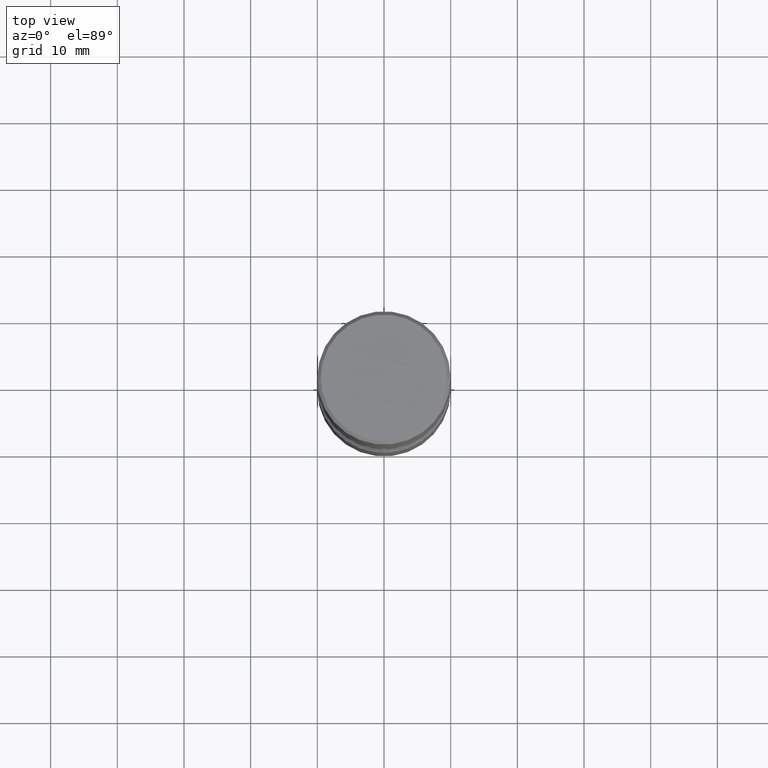
[diagram: clean part render]
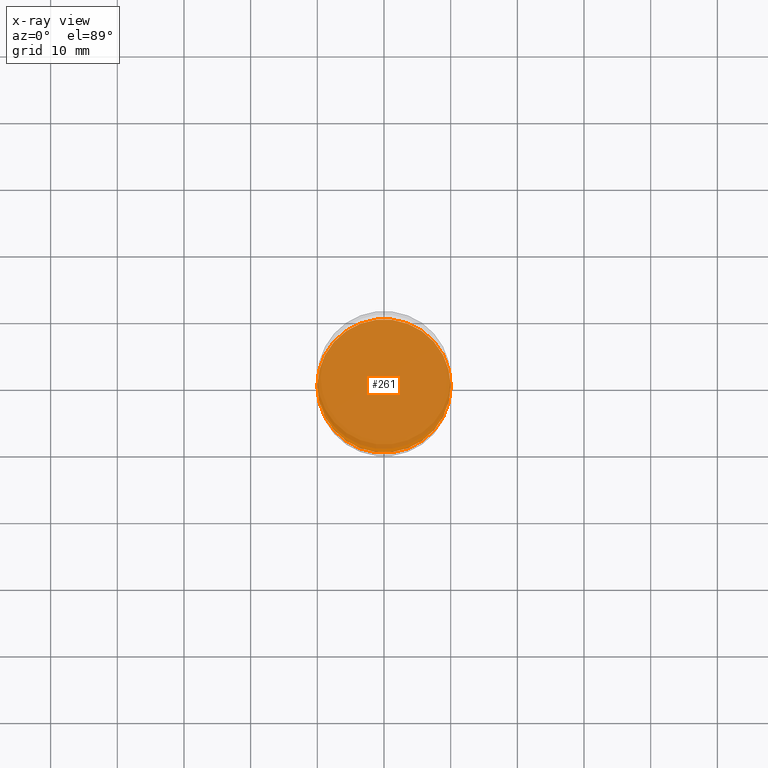
[diagram: x-ray — body ghosted, one internal face saturated and labeled with its STEP entity id]
A machine part, top view, then the same camera in x-ray: the body is ghosted and one INTERNAL B-rep face — a face not visible from any outside direction — is saturated and labeled: STEP entity #261.
In plain terms, the highlighted planar face has unit normal (0, -0, -1).
Its self-contained STEP definition (entity closure, byte-faithful):
#14 = CARTESIAN_POINT ( 'NONE',  ( 6.835574407048695164E-29, -9.759388638334361670E-15, -2.795200000000000351 ) ) ;
#46 = CARTESIAN_POINT ( 'NONE',  ( 6.835574407048695164E-29, -9.759388638334361670E-15, -2.795200000000000351 ) ) ;
#61 = VERTEX_POINT ( 'NONE', #409 ) ;
#84 = AXIS2_PLACEMENT_3D ( 'NONE', #14, #98, #137 ) ;
#86 = DIRECTION ( 'NONE',  ( -2.445468806185136597E-29, 3.491481338843145583E-15, 1.000000000000000000 ) ) ;
#95 = EDGE_CURVE ( 'NONE', #61, #260, #197, .T. ) ;
#98 = DIRECTION ( 'NONE',  ( 2.438088387897960049E-29, -3.491481338843145188E-15, -1.000000000000000000 ) ) ;
#125 = EDGE_CURVE ( 'NONE', #260, #61, #504, .T. ) ;
#137 = DIRECTION ( 'NONE',  ( -1.000000000000000000, 6.982962677686265922E-15, -4.876176775795935793E-29 ) ) ;
#150 = ORIENTED_EDGE ( 'NONE', *, *, #125, .T. ) ;
#197 = CIRCLE ( 'NONE', #480, 0.3937000000000002164 ) ;
#260 = VERTEX_POINT ( 'NONE', #269 ) ;
#261 = ADVANCED_FACE ( 'NONE', ( #441 ), #479, .F. ) ;
#269 = CARTESIAN_POINT ( 'NONE',  ( -0.3937000000000002164, -9.161440557051081666E-15, -2.795200000000000351 ) ) ;
#305 = DIRECTION ( 'NONE',  ( -2.445468806185136597E-29, 3.491481338843145583E-15, 1.000000000000000000 ) ) ;
#339 = DIRECTION ( 'NONE',  ( 1.000000000000000000, -6.982962677686269866E-15, 0.000000000000000000 ) ) ;
#340 = DIRECTION ( 'NONE',  ( 1.000000000000000000, -6.982962677686269866E-15, 0.000000000000000000 ) ) ;
#375 = EDGE_LOOP ( 'NONE', ( #553, #150 ) ) ;
#409 = CARTESIAN_POINT ( 'NONE',  ( 0.3937000000000002164, -1.250858104453944804E-14, -2.795200000000000351 ) ) ;
#422 = CARTESIAN_POINT ( 'NONE',  ( 6.835574407048695164E-29, -9.759388638334361670E-15, -2.795200000000000351 ) ) ;
#441 = FACE_OUTER_BOUND ( 'NONE', #375, .T. ) ;
#479 = PLANE ( 'NONE',  #84 ) ;
#480 = AXIS2_PLACEMENT_3D ( 'NONE', #46, #86, #340 ) ;
#504 = CIRCLE ( 'NONE', #524, 0.3937000000000002164 ) ;
#524 = AXIS2_PLACEMENT_3D ( 'NONE', #422, #305, #339 ) ;
#553 = ORIENTED_EDGE ( 'NONE', *, *, #95, .T. ) ;